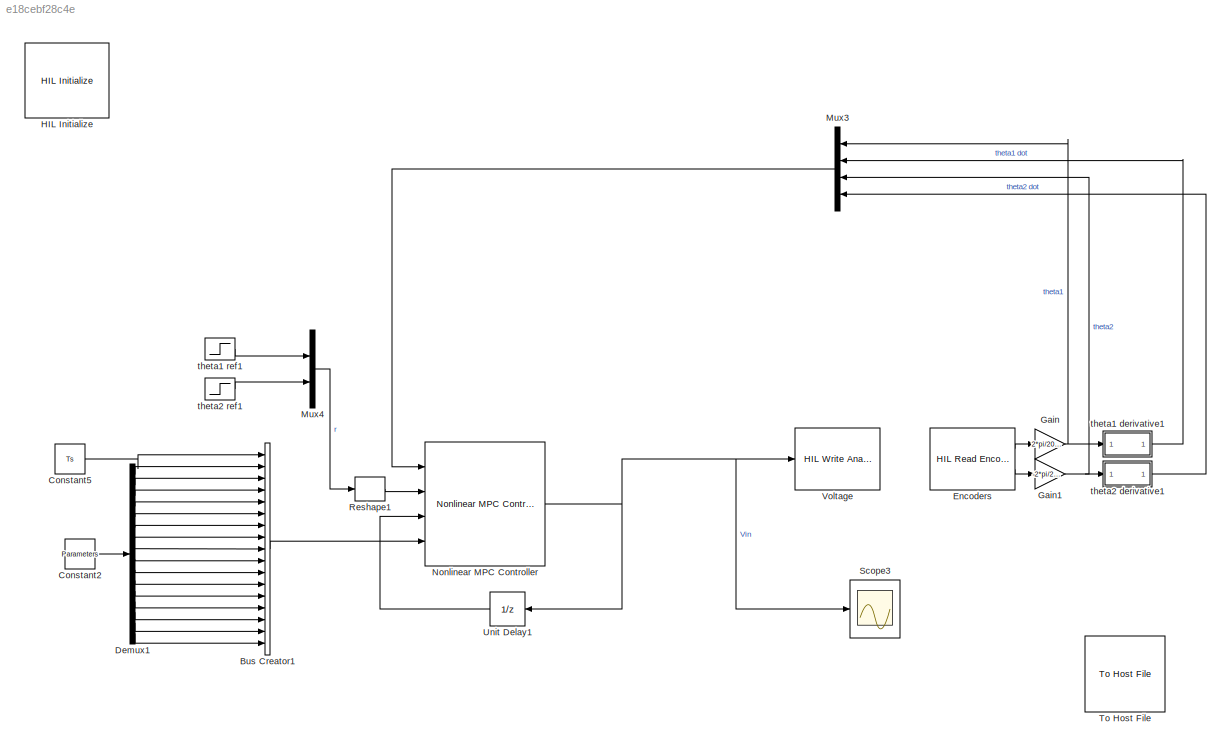
MODEL slx_e18cebf28c4e
KIND model
CONFIG AbsTol = auto
CONFIG EnableMultiTasking = on
CONFIG FixedStep = 0.002
CONFIG MaxStep = auto
CONFIG MinStep = auto
CONFIG PostLoadFcn = qc_set_target_type(getConfigSet(bdroot, 'QUARC Default Target Configuration'));
CONFIG RelTol = 1e-3
CONFIG SampleTimeConstraint = Unconstrained
CONFIG Solver = ode1
CONFIG SolverName = ode1
CONFIG StartTime = 0.0
CONFIG StopTime = inf
BLOCK [BusCreator] Bus Creator1
  DisplayOption = bar
  InheritFromInputs = on
  Inputs = 17
  NonVirtualBus = on
  OutDataTypeStr = Bus: customBusObject
  Ports = [17, 1]
BLOCK [Constant] Constant2
  Value = Parameters
BLOCK [Constant] Constant5
  Value = Ts
BLOCK [Demux] Demux1
  DisplayOption = bar
  Outputs = 16
  Ports = [1, 16]
BLOCK [Reference] Encoders  REF=quarc_library/Data Acquisition/Generic/Timebases/HIL Read Encoder
Timebase
  AttributesFormatString = (%<object_name>)
  Ports = [0, 2]
  SourceBlock = quarc_library/Data Acquisition/Generic/Timebases/HIL Read Encoder\nTimebase
  SourceProductName = QUARC Targets
  SourceType = HIL Read Encoder Timebase
  UserDataPersistent = on
BLOCK [Gain] Gain
  Gain = 2*pi/2048
  OutDataTypeStr = Inherit: Inherit via internal rule
  ParamDataTypeStr = Inherit: Inherit via internal rule
  SaturateOnIntegerOverflow = off
BLOCK [Gain] Gain1
  Gain = -2*pi/2048
  OutDataTypeStr = Inherit: Inherit via internal rule
  ParamDataTypeStr = Inherit: Inherit via internal rule
  SaturateOnIntegerOverflow = off
BLOCK [Reference] HIL Initialize  REF=quarc_library/Data Acquisition/Generic/Configuration/HIL Initialize
  AttributesFormatString = %<object_name> (%<board_type>-%<board_number>)
  Ports = []
  Priority = -99
  SourceBlock = quarc_library/Data Acquisition/Generic/Configuration/HIL Initialize
  SourceProductName = QUARC Targets
  SourceType = HIL Initialize
  UserDataPersistent = on
BLOCK [Mux] Mux3
  DisplayOption = bar
  Ports = [4, 1]
BLOCK [Mux] Mux4
  DisplayOption = bar
  Inputs = 2
  Ports = [2, 1]
BLOCK [Reference] Nonlinear MPC Controller  REF=mpclib/Nonlinear MPC Controller  (lib defined in mdl_ae329e0e0455)
  Ports = [4, 1]
  SourceBlock = mpclib/Nonlinear MPC Controller
  SourceProductBaseCode = MP
  SourceProductName = Model Predictive Control Toolbox
  SourceType = NonlinearMPC
BLOCK [Reshape] Reshape1
  OutputDimensionality = Row vector (2-D)
  Ports = [1, 1]
BLOCK [Scope] Scope3
  Floating = off
  NumInputPorts = 1
  Ports = [1]
  ScopeSpecificationString = Simulink.scopes.TimeScopeBlockCfg('CurrentConfiguration', extmgr.ConfigurationSet(extmgr.Configuration('Core','General UI',true),extmgr.Configuration('Core','Source UI',true),extmgr.Configuration('Sources','WiredSimulink',true,'DataLoggingSaveFormat','StructureWithTime','DataLoggingDecimation','1','DataLoggingVariableName','ScopeData2'),extmgr.Configuration('Visuals','Time Domain',true,'Serialized...<+1550ch>
BLOCK [Reference] To Host File  REF=quarc_library/Sinks/To Host/To Host File
  AttributesFormatString = %<final_file_name>
  Ports = [1]
  SourceBlock = quarc_library/Sinks/To Host/To Host File
  SourceProductName = QUARC Targets
  SourceType = To Host File
BLOCK [UnitDelay] Unit Delay1
  HasFrameUpgradeWarning = on
  SampleTime = -1
BLOCK [Reference] Voltage  REF=quarc_library/Data Acquisition/Generic/Immediate I//O/HIL Write Analog
  AttributesFormatString = (%<object_name>)
  Ports = [1]
  SourceBlock = quarc_library/Data Acquisition/Generic/Immediate I//O/HIL Write Analog
  SourceProductName = QUARC Targets
  SourceType = HIL Write Analog
  UserDataPersistent = on
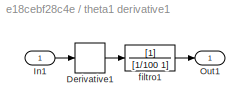
BLOCK [SubSystem] theta1 derivative1
  Ports = [1, 1]
  RequestExecContextInheritance = off
  ShowPortLabels = none
BLOCK [Derivative] theta1 derivative1/Derivative1
BLOCK [Inport] theta1 derivative1/In1
  IconDisplay = Port number
BLOCK [Outport] theta1 derivative1/Out1
  IconDisplay = Port number
BLOCK [TransferFcn] theta1 derivative1/filtro1 
  Denominator = [1/100 1]
BLOCK [Step] theta1 ref1
  After = yref(1)
  SampleTime = 0
  Time = 10
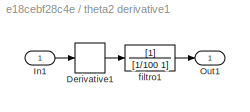
BLOCK [SubSystem] theta2 derivative1
  Ports = [1, 1]
  RequestExecContextInheritance = off
  ShowPortLabels = none
BLOCK [Derivative] theta2 derivative1/Derivative1
BLOCK [Inport] theta2 derivative1/In1
  IconDisplay = Port number
BLOCK [Outport] theta2 derivative1/Out1
  IconDisplay = Port number
BLOCK [TransferFcn] theta2 derivative1/filtro1 
  Denominator = [1/100 1]
BLOCK [Step] theta2 ref1
  After = yref(2)
  SampleTime = 0
  Time = 0
LINE Bus Creator1:1 -> Nonlinear MPC Controller:4
LINE Constant2:1 -> Demux1:1
LINE Constant5:1 -> Bus Creator1:1
LINE Demux1:1 -> Bus Creator1:2
LINE Demux1:10 -> Bus Creator1:11
LINE Demux1:11 -> Bus Creator1:12
LINE Demux1:12 -> Bus Creator1:13
LINE Demux1:13 -> Bus Creator1:14
LINE Demux1:14 -> Bus Creator1:15
LINE Demux1:15 -> Bus Creator1:16
LINE Demux1:16 -> Bus Creator1:17
LINE Demux1:2 -> Bus Creator1:3
LINE Demux1:3 -> Bus Creator1:4
LINE Demux1:4 -> Bus Creator1:5
LINE Demux1:5 -> Bus Creator1:6
LINE Demux1:6 -> Bus Creator1:7
LINE Demux1:7 -> Bus Creator1:8
LINE Demux1:8 -> Bus Creator1:9
LINE Demux1:9 -> Bus Creator1:10
LINE Encoders:1 -> Gain:1
LINE Encoders:2 -> Gain1:1
NET Gain1:1 -> Mux3:3, theta2 derivative1:1
NET Gain:1 -> Mux3:1, theta1 derivative1:1
LINE Mux3:1 -> Nonlinear MPC Controller:1
LINE Mux4:1 -> Reshape1:1
NET Nonlinear MPC Controller:1 -> Scope3:1, Unit Delay1:1, Voltage:1
LINE Reshape1:1 -> Nonlinear MPC Controller:2
LINE Unit Delay1:1 -> Nonlinear MPC Controller:3
LINE theta1 derivative1/Derivative1:1 -> theta1 derivative1/filtro1 :1
LINE theta1 derivative1/In1:1 -> theta1 derivative1/Derivative1:1
LINE theta1 derivative1/filtro1 :1 -> theta1 derivative1/Out1:1
LINE theta1 derivative1:1 -> Mux3:2
LINE theta1 ref1:1 -> Mux4:1
LINE theta2 derivative1/Derivative1:1 -> theta2 derivative1/filtro1 :1
LINE theta2 derivative1/In1:1 -> theta2 derivative1/Derivative1:1
LINE theta2 derivative1/filtro1 :1 -> theta2 derivative1/Out1:1
LINE theta2 derivative1:1 -> Mux3:4
LINE theta2 ref1:1 -> Mux4:2
note: NET lines group one-source signal fan-out (src -> all destinations, sorted); 1:1 wires keep LINE
